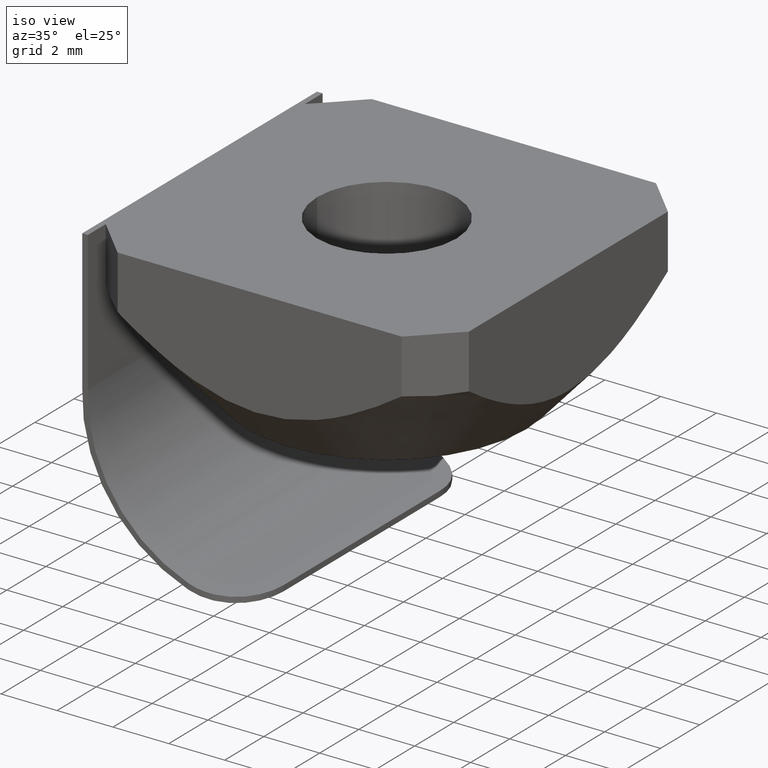
[diagram: clean part render]
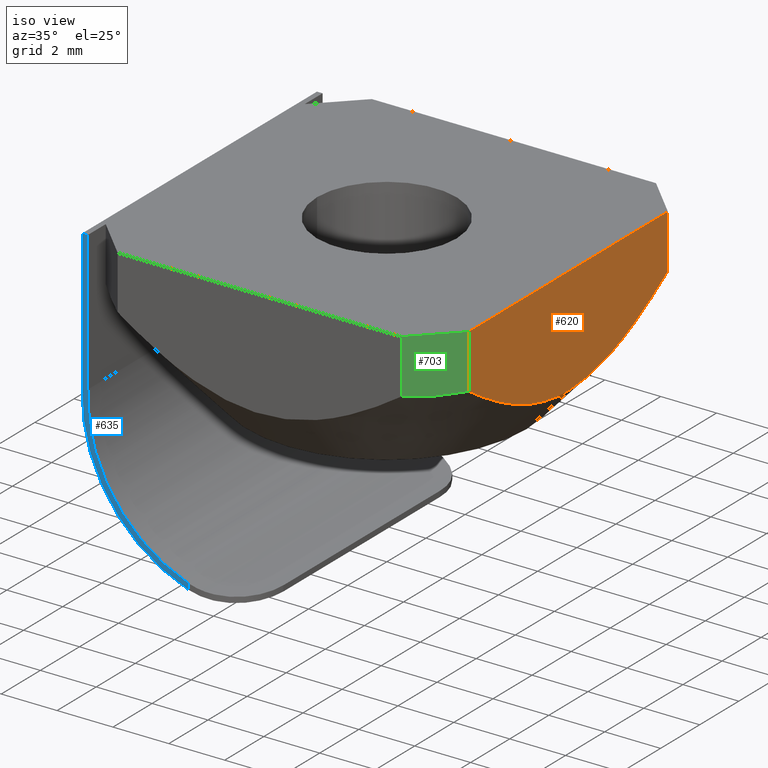
[diagram: same view with three faces highlighted in distinct colors, each labeled with its STEP entity id]
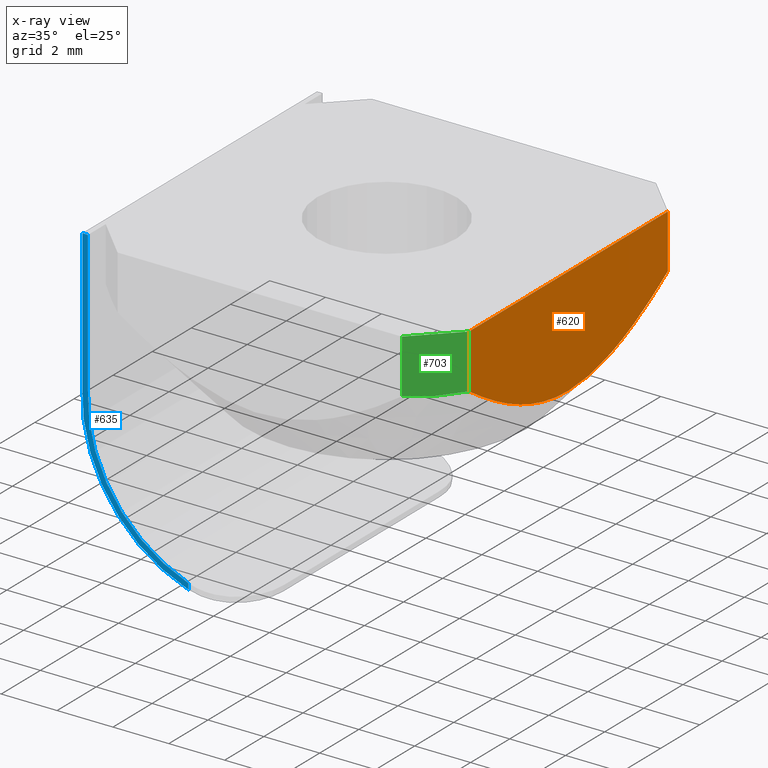
[diagram: x-ray of the same camera — body ghosted, the three highlighted faces saturated]
A machine part, iso view with three faces highlighted in distinct colors.
The next image is the same camera in x-ray (body ghosted, the three faces saturated) — at least one of them is partly hidden behind the body in this view.
Their STEP definitions:

[orange] entity #620 — the highlighted planar face has unit normal (1, -0, 0).
#7 = VERTEX_POINT ( 'NONE', #171 ) ;
#9 = DIRECTION ( 'NONE',  ( -0.0000000000000000000, -0.0000000000000000000, 1.000000000000000000 ) ) ;
#17 = VECTOR ( 'NONE', #9, 1000.000000000000000 ) ;
#50 = CARTESIAN_POINT ( 'NONE',  ( 6.500000000000000888, 0.4651318099034550402, -3.855463141347036604 ) ) ;
#53 = EDGE_CURVE ( 'NONE', #428, #301, #193, .T. ) ;
#67 = DIRECTION ( 'NONE',  ( -0.0000000000000000000, 1.000000000000000000, 0.0000000000000000000 ) ) ;
#77 = AXIS2_PLACEMENT_3D ( 'NONE', #481, #616, #544 ) ;
#79 = CARTESIAN_POINT ( 'NONE',  ( 6.500000000000000888, -4.314590728831698918, -2.436610215365368148 ) ) ;
#89 = EDGE_CURVE ( 'NONE', #447, #7, #645, .T. ) ;
#116 = CARTESIAN_POINT ( 'NONE',  ( 6.500000000000001776, 3.516244482516675429, -2.888242014042283312 ) ) ;
#118 = CARTESIAN_POINT ( 'NONE',  ( 6.500000000000002665, 3.107041589949054661, -3.094886115538637128 ) ) ;
#149 = CARTESIAN_POINT ( 'NONE',  ( 6.500000000000000000, -2.258188589613314257, -3.449924592231258913 ) ) ;
#171 = CARTESIAN_POINT ( 'NONE',  ( 6.500000000012471801, -5.085786437677110250, -1.933334202242371402 ) ) ;
#193 = B_SPLINE_CURVE_WITH_KNOTS ( 'NONE', 3,
 ( #723, #50, #457, #802, #387, #118, #116, #454, #655, #586 ),
 .UNSPECIFIED., .F., .F.,
 ( 4, 2, 2, 2, 4 ),
 ( 0.005500282472162170040, 0.006875464021324488584, 0.008250645570486806260, 0.009625827119649123936, 0.01100100866881144161 ),
 .UNSPECIFIED. ) ;
#221 = CARTESIAN_POINT ( 'NONE',  ( 6.500000000000000888, 2.268358371881253341E-15, -3.855463141347035716 ) ) ;
#241 = VERTEX_POINT ( 'NONE', #360 ) ;
#254 = LINE ( 'NONE', #480, #775 ) ;
#257 = ORIENTED_EDGE ( 'NONE', *, *, #706, .F. ) ;
#262 = PLANE ( 'NONE',  #77 ) ;
#285 = CARTESIAN_POINT ( 'NONE',  ( 6.500000000000002665, -0.4650942893279644830, -3.855463141347037048 ) ) ;
#295 = CARTESIAN_POINT ( 'NONE',  ( 6.499999999999999112, -3.516297865762419761, -2.888213576328807708 ) ) ;
#301 = VERTEX_POINT ( 'NONE', #625 ) ;
#359 = CARTESIAN_POINT ( 'NONE',  ( 6.500000000012471801, -5.085786437677110250, -1.933334202242371402 ) ) ;
#360 = CARTESIAN_POINT ( 'NONE',  ( 6.500000000000000888, 5.085786437626908629, 0.0000000000000000000 ) ) ;
#365 = EDGE_LOOP ( 'NONE', ( #257, #509, #515, #639, #463 ) ) ;
#387 = CARTESIAN_POINT ( 'NONE',  ( 6.500000000000000888, 2.258115985482339383, -3.449951132496112738 ) ) ;
#392 = CARTESIAN_POINT ( 'NONE',  ( 6.500000000000000888, -5.085786437626907741, 0.0000000000000000000 ) ) ;
#424 = LINE ( 'NONE', #547, #17 ) ;
#428 = VERTEX_POINT ( 'NONE', #773 ) ;
#447 = VERTEX_POINT ( 'NONE', #772 ) ;
#454 = CARTESIAN_POINT ( 'NONE',  ( 6.500000000000002665, 4.314560848977908591, -2.436628880351495496 ) ) ;
#457 = CARTESIAN_POINT ( 'NONE',  ( 6.500000000000000888, 0.9206392684270442439, -3.800366371404682475 ) ) ;
#460 = FACE_OUTER_BOUND ( 'NONE', #365, .T. ) ;
#463 = ORIENTED_EDGE ( 'NONE', *, *, #696, .T. ) ;
#480 = CARTESIAN_POINT ( 'NONE',  ( 6.500000000000000888, 6.591949000000000730E-16, 0.0000000000000000000 ) ) ;
#481 = CARTESIAN_POINT ( 'NONE',  ( 6.500000000000000888, -5.085786437626907741, 0.0000000000000000000 ) ) ;
#484 = CARTESIAN_POINT ( 'NONE',  ( 6.500000000000000888, -1.815724347486215251, -3.598234520951646864 ) ) ;
#509 = ORIENTED_EDGE ( 'NONE', *, *, #89, .T. ) ;
#515 = ORIENTED_EDGE ( 'NONE', *, *, #859, .T. ) ;
#544 = DIRECTION ( 'NONE',  ( 0.0000000000000000000, 0.0000000000000000000, -1.000000000000000000 ) ) ;
#547 = CARTESIAN_POINT ( 'NONE',  ( 6.500000000000000888, 5.085786437626907741, 0.0000000000000000000 ) ) ;
#556 = VECTOR ( 'NONE', #870, 1000.000000000000000 ) ;
#586 = CARTESIAN_POINT ( 'NONE',  ( 6.500000000012471801, 5.085786437614437716, -1.933334202284715309 ) ) ;
#616 = DIRECTION ( 'NONE',  ( 1.000000000000000000, -0.0000000000000000000, 0.0000000000000000000 ) ) ;
#620 = ADVANCED_FACE ( 'NONE', ( #460 ), #262, .T. ) ;
#624 = CARTESIAN_POINT ( 'NONE',  ( 6.500000000000000888, -0.9207822176421274207, -3.800343512463968842 ) ) ;
#625 = CARTESIAN_POINT ( 'NONE',  ( 6.500000000012471801, 5.085786437614437716, -1.933334202284715309 ) ) ;
#639 = ORIENTED_EDGE ( 'NONE', *, *, #53, .T. ) ;
#645 = LINE ( 'NONE', #392, #556 ) ;
#655 = CARTESIAN_POINT ( 'NONE',  ( 6.500000000000000000, 4.703607954553438830, -2.191533235836048643 ) ) ;
#688 = CARTESIAN_POINT ( 'NONE',  ( 6.499999999966564523, -4.703623633186840181, -2.191522643361967226 ) ) ;
#696 = EDGE_CURVE ( 'NONE', #301, #241, #424, .T. ) ;
#706 = EDGE_CURVE ( 'NONE', #447, #241, #254, .T. ) ;
#723 = CARTESIAN_POINT ( 'NONE',  ( 6.500000000000000888, 2.268358371881253341E-15, -3.855463141347035716 ) ) ;
#757 = CARTESIAN_POINT ( 'NONE',  ( 6.499999999999999112, -3.107104337365194535, -3.094856044108537763 ) ) ;
#772 = CARTESIAN_POINT ( 'NONE',  ( 6.500000000000000888, -5.085786437626907741, 0.0000000000000000000 ) ) ;
#773 = CARTESIAN_POINT ( 'NONE',  ( 6.500000000000000888, 2.268358371881253341E-15, -3.855463141347035716 ) ) ;
#775 = VECTOR ( 'NONE', #67, 1000.000000000000000 ) ;
#802 = CARTESIAN_POINT ( 'NONE',  ( 6.500000000000000888, 1.815600839890428864, -3.598271834400735170 ) ) ;
#859 = EDGE_CURVE ( 'NONE', #7, #428, #880, .T. ) ;
#870 = DIRECTION ( 'NONE',  ( 0.0000000000000000000, 0.0000000000000000000, -1.000000000000000000 ) ) ;
#880 = B_SPLINE_CURVE_WITH_KNOTS ( 'NONE', 3,
 ( #359, #688, #79, #295, #757, #149, #484, #624, #285, #221 ),
 .UNSPECIFIED., .F., .F.,
 ( 4, 2, 2, 2, 4 ),
 ( 8.321661056377371081E-14, 0.001375070618102954174, 0.002750141236122692796, 0.004125211854142431418, 0.005500282472162170040 ),
 .UNSPECIFIED. ) ;

[blue] entity #635 — the highlighted planar face has unit normal (0, 1, 0).
#3 = LINE ( 'NONE', #715, #709 ) ;
#37 = VERTEX_POINT ( 'NONE', #708 ) ;
#75 = PLANE ( 'NONE',  #324 ) ;
#94 = DIRECTION ( 'NONE',  ( 0.0000000000000000000, 0.0000000000000000000, 1.000000000000000000 ) ) ;
#96 = VERTEX_POINT ( 'NONE', #521 ) ;
#217 = DIRECTION ( 'NONE',  ( 0.0000000000000000000, 1.000000000000000000, 0.0000000000000000000 ) ) ;
#220 = CARTESIAN_POINT ( 'NONE',  ( -2.899999999999091749, -6.000000000000000888, -8.605752313873143322 ) ) ;
#237 = DIRECTION ( 'NONE',  ( 1.000000000000000000, 0.0000000000000000000, -0.0000000000000000000 ) ) ;
#243 = DIRECTION ( 'NONE',  ( 0.0000000000000000000, 0.0000000000000000000, -1.000000000000000000 ) ) ;
#248 = VERTEX_POINT ( 'NONE', #268 ) ;
#259 = ORIENTED_EDGE ( 'NONE', *, *, #582, .F. ) ;
#268 = CARTESIAN_POINT ( 'NONE',  ( -6.500000000000001776, -6.000000000000000888, 0.0000000000000000000 ) ) ;
#300 = CARTESIAN_POINT ( 'NONE',  ( -5.221683483938816650, -6.000000000000000888, 0.0000000000000000000 ) ) ;
#324 = AXIS2_PLACEMENT_3D ( 'NONE', #889, #217, #489 ) ;
#362 = CARTESIAN_POINT ( 'NONE',  ( -1.130613297613433987, -6.000000000000000888, -5.230613297613471602 ) ) ;
#368 = EDGE_CURVE ( 'NONE', #37, #609, #807, .T. ) ;
#385 = VERTEX_POINT ( 'NONE', #770 ) ;
#389 = EDGE_CURVE ( 'NONE', #570, #248, #659, .T. ) ;
#441 = EDGE_CURVE ( 'NONE', #96, #385, #533, .T. ) ;
#466 = CARTESIAN_POINT ( 'NONE',  ( -6.700000000000000178, -6.000000000000000888, 0.0000000000000000000 ) ) ;
#487 = VECTOR ( 'NONE', #237, 1000.000000000000000 ) ;
#489 = DIRECTION ( 'NONE',  ( 0.0000000000000000000, -0.0000000000000000000, 1.000000000000000000 ) ) ;
#501 = EDGE_CURVE ( 'NONE', #248, #37, #3, .T. ) ;
#506 = DIRECTION ( 'NONE',  ( 0.0000000000000000000, 1.000000000000000000, 0.0000000000000000000 ) ) ;
#521 = CARTESIAN_POINT ( 'NONE',  ( -2.899999999999090861, -6.000000000000000888, -10.51649273543432273 ) ) ;
#533 = CIRCLE ( 'NONE', #872, 5.574159195229042574 ) ;
#552 = VECTOR ( 'NONE', #808, 1000.000000000000000 ) ;
#560 = DIRECTION ( 'NONE',  ( 0.0000000000000000000, 0.0000000000000000000, 1.000000000000000000 ) ) ;
#570 = VERTEX_POINT ( 'NONE', #466 ) ;
#582 = EDGE_CURVE ( 'NONE', #385, #570, #806, .T. ) ;
#606 = VECTOR ( 'NONE', #690, 1000.000000000000000 ) ;
#608 = ORIENTED_EDGE ( 'NONE', *, *, #389, .F. ) ;
#609 = VERTEX_POINT ( 'NONE', #882 ) ;
#635 = ADVANCED_FACE ( 'NONE', ( #855 ), #75, .F. ) ;
#638 = DIRECTION ( 'NONE',  ( -0.0000000000000000000, -1.000000000000000000, -0.0000000000000000000 ) ) ;
#640 = CARTESIAN_POINT ( 'NONE',  ( -1.130613297613433987, -6.000000000000000888, -5.230613297613471602 ) ) ;
#659 = LINE ( 'NONE', #300, #487 ) ;
#690 = DIRECTION ( 'NONE',  ( 0.0000000000000000000, 0.0000000000000000000, -1.000000000000000000 ) ) ;
#699 = ORIENTED_EDGE ( 'NONE', *, *, #441, .F. ) ;
#708 = CARTESIAN_POINT ( 'NONE',  ( -6.500000000000000888, -6.000000000000000888, -5.000000000000007105 ) ) ;
#709 = VECTOR ( 'NONE', #243, 1000.000000000000000 ) ;
#715 = CARTESIAN_POINT ( 'NONE',  ( -6.500000000000000888, -6.000000000000000888, -4.999999999999999112 ) ) ;
#761 = AXIS2_PLACEMENT_3D ( 'NONE', #640, #638, #560 ) ;
#770 = CARTESIAN_POINT ( 'NONE',  ( -6.700000000000000178, -6.000000000000000888, -4.999999999999985789 ) ) ;
#777 = EDGE_LOOP ( 'NONE', ( #786, #866, #608, #259, #699, #823 ) ) ;
#786 = ORIENTED_EDGE ( 'NONE', *, *, #368, .F. ) ;
#790 = EDGE_CURVE ( 'NONE', #609, #96, #795, .T. ) ;
#795 = LINE ( 'NONE', #220, #606 ) ;
#803 = CARTESIAN_POINT ( 'NONE',  ( -6.700000000000000178, -6.000000000000000888, 0.0000000000000000000 ) ) ;
#806 = LINE ( 'NONE', #803, #552 ) ;
#807 = CIRCLE ( 'NONE', #761, 5.374336801206437642 ) ;
#808 = DIRECTION ( 'NONE',  ( 0.0000000000000000000, 0.0000000000000000000, 1.000000000000000000 ) ) ;
#823 = ORIENTED_EDGE ( 'NONE', *, *, #790, .F. ) ;
#855 = FACE_OUTER_BOUND ( 'NONE', #777, .T. ) ;
#866 = ORIENTED_EDGE ( 'NONE', *, *, #501, .F. ) ;
#872 = AXIS2_PLACEMENT_3D ( 'NONE', #362, #506, #94 ) ;
#882 = CARTESIAN_POINT ( 'NONE',  ( -2.899999999999090861, -6.000000000000000888, -10.30533168883703432 ) ) ;
#889 = CARTESIAN_POINT ( 'NONE',  ( -5.221683483938816650, -6.000000000000000888, -6.411504627746288598 ) ) ;

[green] entity #703 — the highlighted planar face has unit normal (0.7071, -0.7071, 0).
#7 = VERTEX_POINT ( 'NONE', #171 ) ;
#18 = VECTOR ( 'NONE', #618, 1000.000000000000000 ) ;
#81 = CARTESIAN_POINT ( 'NONE',  ( 6.028595479244057032, -5.557190958382852486, -2.021894486498649446 ) ) ;
#84 = ORIENTED_EDGE ( 'NONE', *, *, #89, .F. ) ;
#89 = EDGE_CURVE ( 'NONE', #447, #7, #645, .T. ) ;
#171 = CARTESIAN_POINT ( 'NONE',  ( 6.500000000012471801, -5.085786437677110250, -1.933334202242371402 ) ) ;
#203 = PLANE ( 'NONE',  #486 ) ;
#207 = CARTESIAN_POINT ( 'NONE',  ( 5.085786437677106697, -6.500000000012474466, -1.933334202242371402 ) ) ;
#212 = ORIENTED_EDGE ( 'NONE', *, *, #317, .F. ) ;
#267 = VERTEX_POINT ( 'NONE', #423 ) ;
#271 = DIRECTION ( 'NONE',  ( 0.7071067811865475727, -0.7071067811865475727, 0.0000000000000000000 ) ) ;
#278 = CARTESIAN_POINT ( 'NONE',  ( 5.557190958361344357, -6.028595479226081189, -2.021894486487701315 ) ) ;
#317 = EDGE_CURVE ( 'NONE', #647, #447, #508, .T. ) ;
#346 = DIRECTION ( 'NONE',  ( 0.7071067811865474617, 0.7071067811865474617, 0.0000000000000000000 ) ) ;
#367 = CARTESIAN_POINT ( 'NONE',  ( 5.085786437626905965, -6.500000000000003553, 0.0000000000000000000 ) ) ;
#381 = EDGE_CURVE ( 'NONE', #647, #267, #595, .T. ) ;
#392 = CARTESIAN_POINT ( 'NONE',  ( 6.500000000000000888, -5.085786437626907741, 0.0000000000000000000 ) ) ;
#423 = CARTESIAN_POINT ( 'NONE',  ( 5.085786437677106697, -6.500000000012474466, -1.933334202242371402 ) ) ;
#426 = VECTOR ( 'NONE', #850, 1000.000000000000000 ) ;
#447 = VERTEX_POINT ( 'NONE', #772 ) ;
#476 = ORIENTED_EDGE ( 'NONE', *, *, #381, .T. ) ;
#486 = AXIS2_PLACEMENT_3D ( 'NONE', #671, #271, #346 ) ;
#507 = FACE_OUTER_BOUND ( 'NONE', #718, .T. ) ;
#508 = LINE ( 'NONE', #824, #18 ) ;
#556 = VECTOR ( 'NONE', #870, 1000.000000000000000 ) ;
#585 = ORIENTED_EDGE ( 'NONE', *, *, #754, .T. ) ;
#595 = LINE ( 'NONE', #367, #426 ) ;
#618 = DIRECTION ( 'NONE',  ( 0.7071067811865473507, 0.7071067811865477948, 0.0000000000000000000 ) ) ;
#645 = LINE ( 'NONE', #392, #556 ) ;
#647 = VERTEX_POINT ( 'NONE', #758 ) ;
#671 = CARTESIAN_POINT ( 'NONE',  ( 5.085786437626905965, -6.500000000000003553, 0.0000000000000000000 ) ) ;
#703 = ADVANCED_FACE ( 'NONE', ( #507 ), #203, .T. ) ;
#718 = EDGE_LOOP ( 'NONE', ( #212, #476, #585, #84 ) ) ;
#754 = EDGE_CURVE ( 'NONE', #267, #7, #801, .T. ) ;
#758 = CARTESIAN_POINT ( 'NONE',  ( 5.085786437626906853, -6.500000000000002665, 0.0000000000000000000 ) ) ;
#772 = CARTESIAN_POINT ( 'NONE',  ( 6.500000000000000888, -5.085786437626907741, 0.0000000000000000000 ) ) ;
#801 = B_SPLINE_CURVE_WITH_KNOTS ( 'NONE', 3,
 ( #207, #278, #81, #835 ),
 .UNSPECIFIED., .F., .F.,
 ( 4, 4 ),
 ( 6.051050471646755322E-14, 0.002000000000007151873 ),
 .UNSPECIFIED. ) ;
#824 = CARTESIAN_POINT ( 'NONE',  ( 5.085786437626905965, -6.500000000000003553, 0.0000000000000000000 ) ) ;
#835 = CARTESIAN_POINT ( 'NONE',  ( 6.500000000012471801, -5.085786437677110250, -1.933334202242371402 ) ) ;
#850 = DIRECTION ( 'NONE',  ( 0.0000000000000000000, -0.0000000000000000000, -1.000000000000000000 ) ) ;
#870 = DIRECTION ( 'NONE',  ( 0.0000000000000000000, 0.0000000000000000000, -1.000000000000000000 ) ) ;